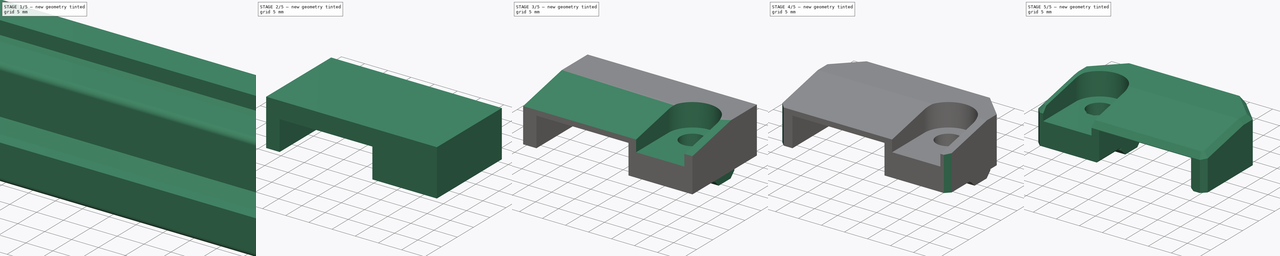
[diagram: build sequence overview — one tinted view per stage of 5, left to right]
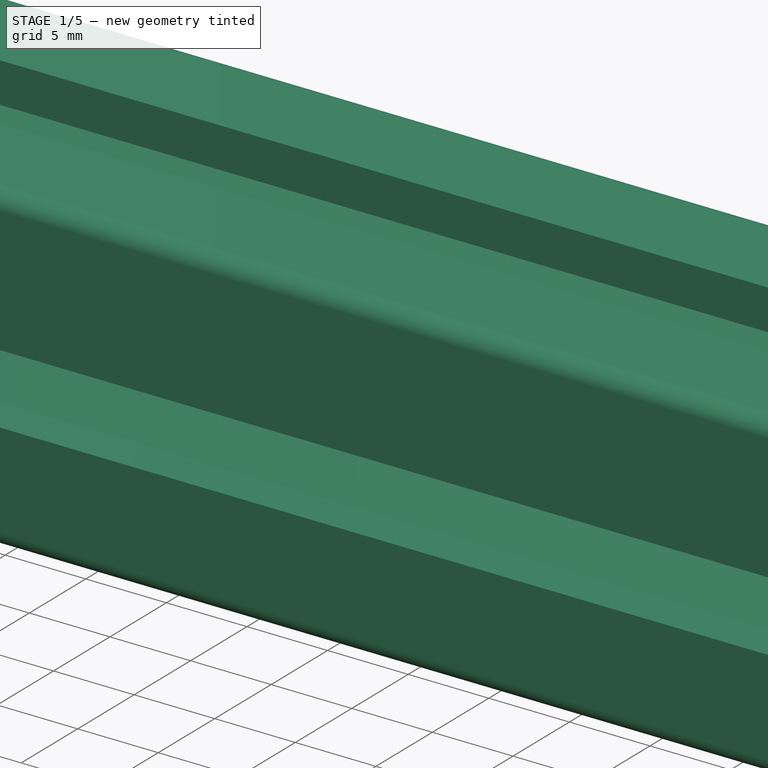
[diagram: stage 1 of 5 — iso view after this stage's code; geometry added in this stage tinted green]
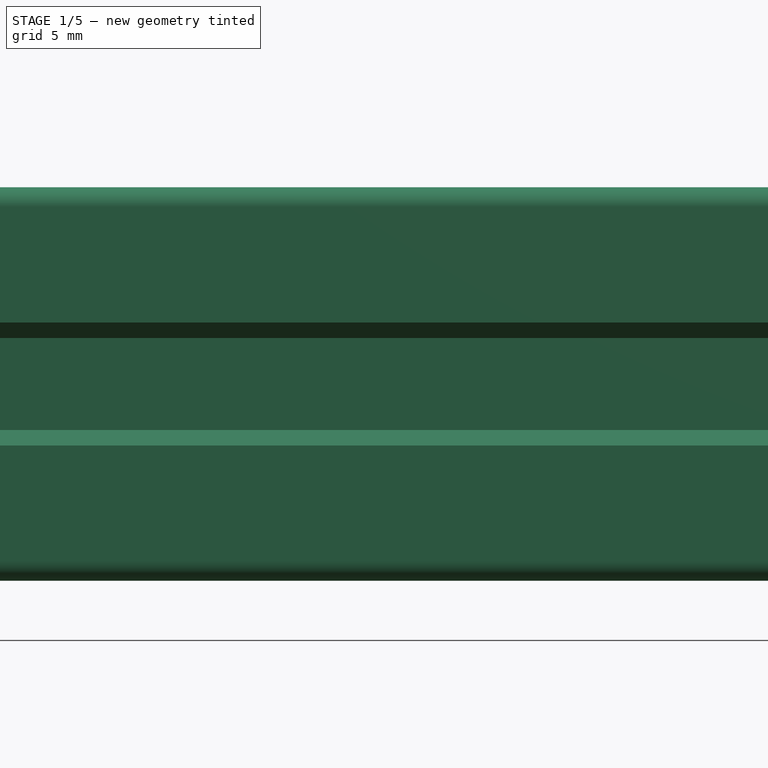
[diagram: stage 1 of 5 — front view after this stage's code; geometry added in this stage tinted green]
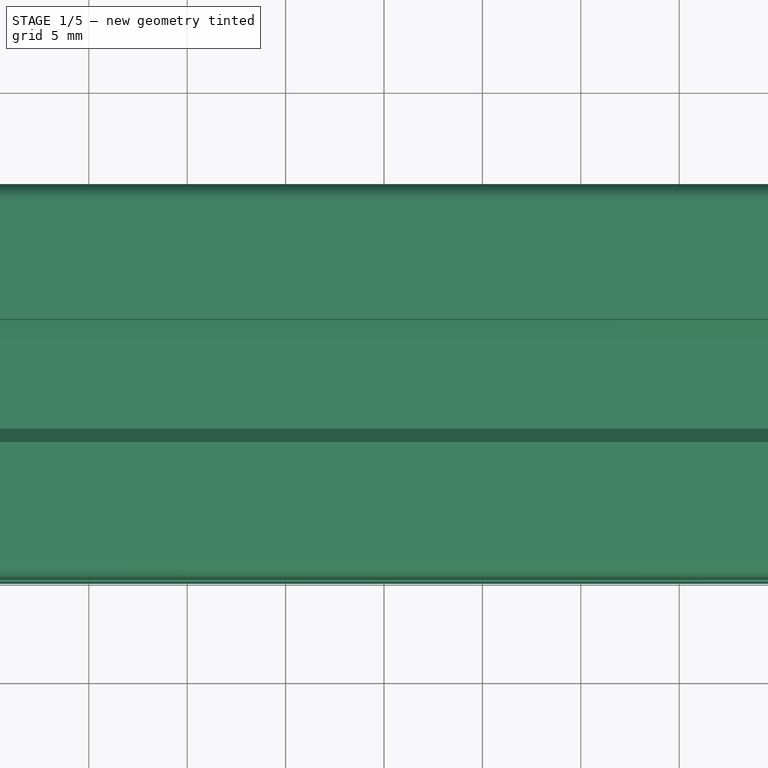
[diagram: stage 1 of 5 — top view after this stage's code; geometry added in this stage tinted green]
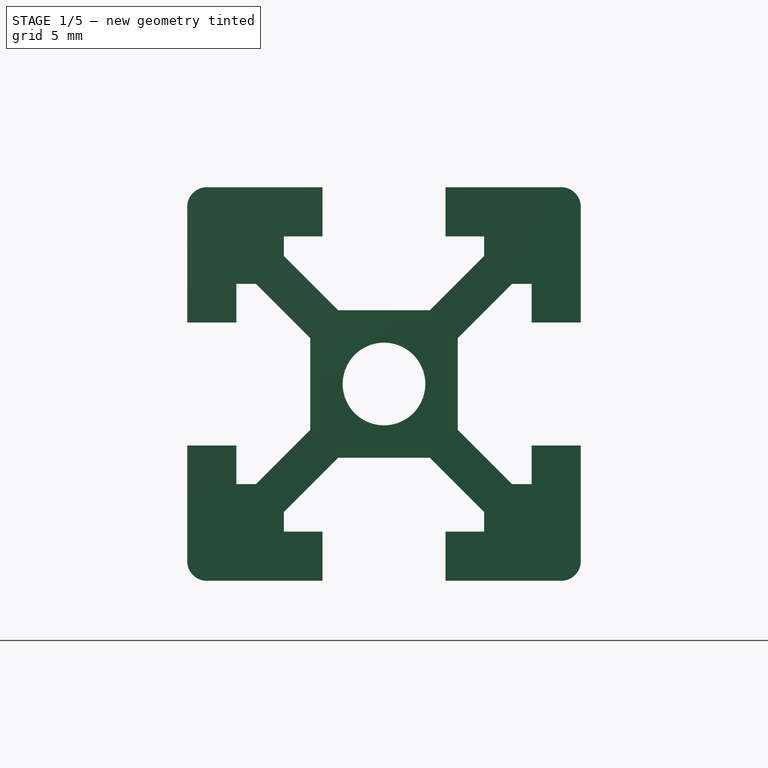
[diagram: stage 1 of 5 — right view after this stage's code; geometry added in this stage tinted green]
FCSTD DOCUMENT  (FreeCAD 0.18R16158 (Git))
Label: xendstop_3018pro
License: All rights reserved
LicenseURL: http://en.wikipedia.org/wiki/All_rights_reserved
objects: Sketcher::SketchObject×12, PartDesign::Pocket×8, PartDesign::Chamfer×5, App::Part×4, Part::Feature×4, PartDesign::Pad×3, PartDesign::ShapeBinder×3, PartDesign::Body×2, PartDesign::PolarPattern×1, PartDesign::Plane×1, PartDesign::Revolution×1, PartDesign::LinearPattern×1, PartDesign::Fillet×1, Part::Mirroring×1
note: 55 computed .brp shape members not serialized (recipe doc carries the construction recipe); baked Part::Feature solids carry a one-line shape summary decoded from their .brp

FEATURE [Sketcher::SketchObject] Sketch
  MapMode = 5
  Placement = pos=(0,0,0) rot=(0.57735,0.57735,0.57735;2.0944rad)
  Support = -> [YZ_Plane001]
  sketch-geometry (8):
    g0: LineSegment StartX=-9 StartY=10 StartZ=0 EndX=9 EndY=10 EndZ=0
    g1: LineSegment StartX=10 StartY=9 StartZ=0 EndX=10 EndY=-9 EndZ=0
    g2: LineSegment StartX=9 StartY=-10 StartZ=0 EndX=-9 EndY=-10 EndZ=0
    g3: LineSegment StartX=-10 StartY=-9 StartZ=0 EndX=-10 EndY=9 EndZ=0
    g4: ArcOfCircle CenterX=9 CenterY=9 CenterZ=0 NormalX=0 NormalY=0 NormalZ=1 AngleXU=0 Radius=1 StartAngle=5e-16 EndAngle=1.5708
    g5: ArcOfCircle CenterX=-9 CenterY=9 CenterZ=0 NormalX=0 NormalY=0 NormalZ=1 AngleXU=0 Radius=1 StartAngle=1.5708 EndAngle=3.14159
    g6: ArcOfCircle CenterX=-9 CenterY=-9 CenterZ=0 NormalX=0 NormalY=0 NormalZ=1 AngleXU=0 Radius=1 StartAngle=3.14159 EndAngle=4.71239
    g7: ArcOfCircle CenterX=9 CenterY=-9 CenterZ=0 NormalX=0 NormalY=0 NormalZ=1 AngleXU=0 Radius=1 StartAngle=4.71239 EndAngle=6.28319
  constraints (18):
    c: Horizontal(g0)
    c: Horizontal(g2)
    c: Vertical(g1)
    c: Vertical(g3)
    c: Tangent(g0,g4) = 1.5708
    c: Tangent(g1,g4) = 1.5708
    c: Tangent(g3,g5) = 1.5708
    c: Tangent(g0,g5) = 1.5708
    c: Tangent(g3,g6) = 1.5708
    c: Tangent(g2,g6) = 1.5708
    c: Tangent(g2,g7) = 1.5708
    c: Tangent(g1,g7) = 1.5708
    c: Equal(g7,g6)
    c: Equal(g0,g1)
    c: Symmetric(g4,g5,g-2)
    c: Symmetric(g4,g7,g-1)
    c: Radius(g4) = 1
    c: DistanceX(g3,g1) = 20
FEATURE [PartDesign::Pad] Pad
  Length = 200
  Length2 = 100
  Placement = pos=(0,0,0) rot=(0.57735,0.57735,0.57735;2.0944rad)
  Profile = -> Sketch
  Refine = true
  Type = 0
FEATURE [Sketcher::SketchObject] Sketch001
  ExternalGeometry = -> [Pad]
  MapMode = 5
  Placement = pos=(200,-4.4e-14,4.4e-14) rot=(0.57735,0.57735,0.57735;2.0944rad)
  Support = -> [Pad]
  sketch-geometry (14):
    g0: LineSegment StartX=-3.125 StartY=10 StartZ=0 EndX=3.125 EndY=10 EndZ=0
    g1: LineSegment StartX=3.125 StartY=10 StartZ=0 EndX=3.125 EndY=7.5 EndZ=0
    g2: LineSegment StartX=2.33579 StartY=3.75 StartZ=0 EndX=-2.33579 EndY=3.75 EndZ=0
    g3: LineSegment StartX=-3.125 StartY=7.5 StartZ=0 EndX=-3.125 EndY=10 EndZ=0
    g4: LineSegment StartX=3.125 StartY=7.5 StartZ=0 EndX=5.08579 EndY=7.5 EndZ=0
    g5: LineSegment StartX=5.08579 StartY=7.5 StartZ=0 EndX=5.08579 EndY=6.5 EndZ=0
    g6: LineSegment StartX=5.08579 StartY=6.5 StartZ=0 EndX=2.33579 EndY=3.75 EndZ=0
    g7: LineSegment StartX=-5.08579 StartY=7.5 StartZ=0 EndX=-5.08579 EndY=6.5 EndZ=0
    g8: LineSegment StartX=-5.08579 StartY=6.5 StartZ=0 EndX=-2.33579 EndY=3.75 EndZ=0
    g9: LineSegment [constr] StartX=-3.125 StartY=7.5 StartZ=0 EndX=3.125 EndY=7.5 EndZ=0
    g10: LineSegment [constr] StartX=0 StartY=0 StartZ=0 EndX=-9 EndY=9 EndZ=0
    g11: LineSegment [constr] StartX=0 StartY=0 StartZ=0 EndX=9 EndY=9 EndZ=0
    g12: LineSegment StartX=-3.125 StartY=7.5 StartZ=0 EndX=-5.08579 EndY=7.5 EndZ=0
    g13: LineSegment [constr] StartX=5.08579 StartY=6.5 StartZ=0 EndX=5.79289 EndY=5.79289 EndZ=0
  constraints (37):
    c: Coincident(g0,g1)
    c: Coincident(g3,g0)
    c: Horizontal(g0)
    c: Vertical(g1)
    c: Vertical(g3)
    c: PointOnObject(g0,g-3)
    c: Horizontal(g4)
    c: Coincident(g5,g4)
    c: Vertical(g5)
    c: Coincident(g6,g5)
    c: Coincident(g6,g2)
    c: Vertical(g7)
    c: Coincident(g8,g7)
    c: Coincident(g8,g2)
    c: Coincident(g1,g4)
    c: Coincident(g9,g1)
    c: DistanceX(g0,g0) = 6.25
    c: DistanceY(g2,g-3) = 6.25
    c: DistanceY(g1,g1) = 2.5
    c: Symmetric(g2,g2,g-2)
    c: Symmetric(g1,g3,g-2)
    c: Equal(g5,g7)
    c: Coincident(g10,g-1)
    c: Coincident(g10,g-4)
    c: Coincident(g11,g-1)
    c: Coincident(g11,g-5)
    c: Parallel(g6,g11)
    c: Coincident(g12,g3)
    c: Coincident(g12,g7)
    c: Horizontal(g12)
    c: Parallel(g8,g10)
    c: Coincident(g13,g5)
    c: PointOnObject(g13,g11)
    c: Perpendicular(g6,g13)
    c: Distance(g13) = 1
    c: DistanceY(g7,g7) = 1
    c: Coincident(g9,g3)
FEATURE [PartDesign::Pocket] Pocket
  BaseFeature = -> Pad
  Length = 5
  Length2 = 100
  Placement = pos=(0,0,0) rot=(0.57735,0.57735,0.57735;2.0944rad)
  Profile = -> Sketch001
  Refine = true
  Type = 1
FEATURE [PartDesign::PolarPattern] PolarPattern
  Angle = 360
  Axis = -> Sketch001 [N_Axis]
  BaseFeature = -> Pocket
  Occurrences = 4
  Originals = -> [Pocket]
  Placement = pos=(0,0,0) rot=(0.57735,0.57735,0.57735;2.0944rad)
  Refine = true
FEATURE [Sketcher::SketchObject] Sketch002
  MapMode = 5
  Placement = pos=(200,-4.4e-14,4.4e-14) rot=(0.57735,0.57735,0.57735;2.0944rad)
  Support = -> [PolarPattern]
  sketch-geometry (1):
    g0: Circle CenterX=0 CenterY=0 CenterZ=0 NormalX=0 NormalY=0 NormalZ=1 AngleXU=0 Radius=2.1
  constraints (2):
    c: Coincident(g0,g-1)
    c: Diameter(g0) = 4.2
FEATURE [PartDesign::Pocket] Pocket001
  BaseFeature = -> PolarPattern
  Length = 5
  Length2 = 100
  Placement = pos=(0,0,0) rot=(0.57735,0.57735,0.57735;2.0944rad)
  Profile = -> Sketch002
  Refine = true
  Type = 1
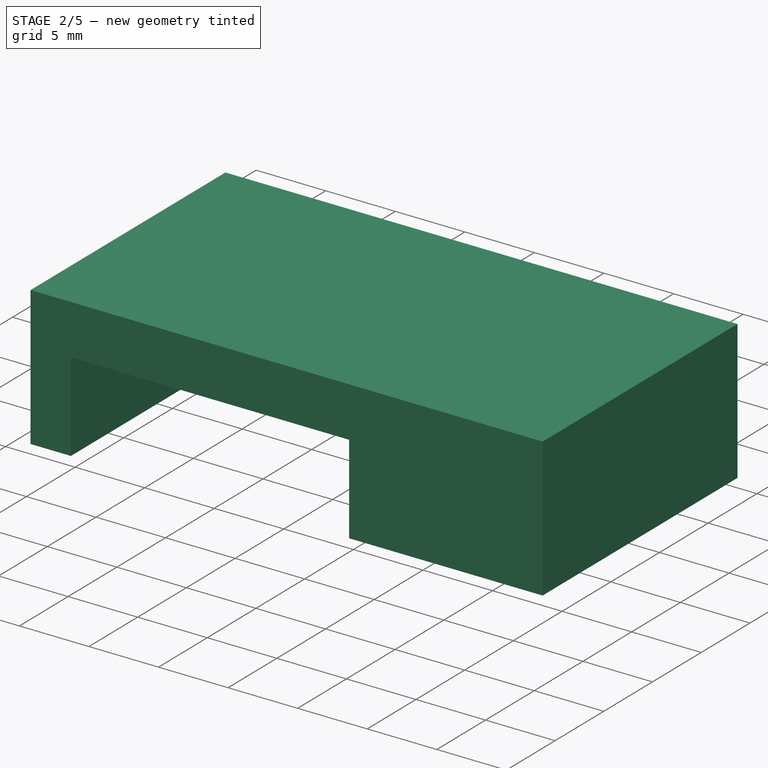
[diagram: stage 2 of 5 — iso view after this stage's code; geometry added in this stage tinted green]
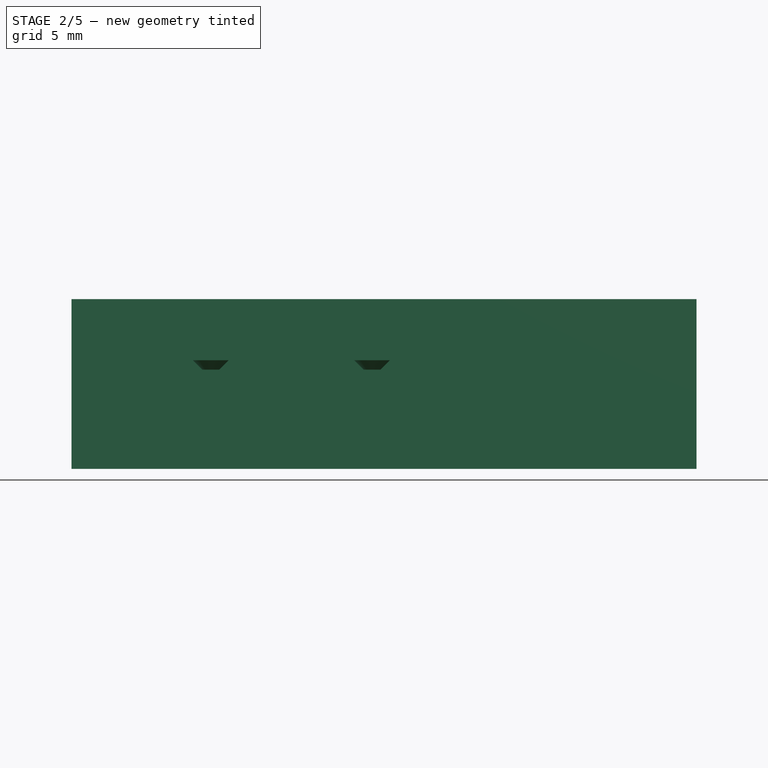
[diagram: stage 2 of 5 — front view after this stage's code; geometry added in this stage tinted green]
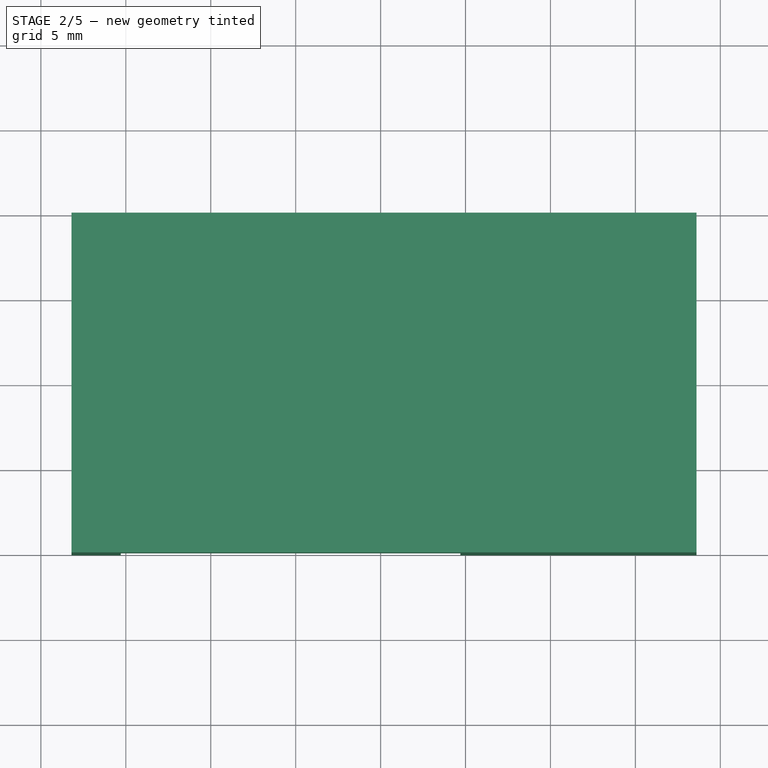
[diagram: stage 2 of 5 — top view after this stage's code; geometry added in this stage tinted green]
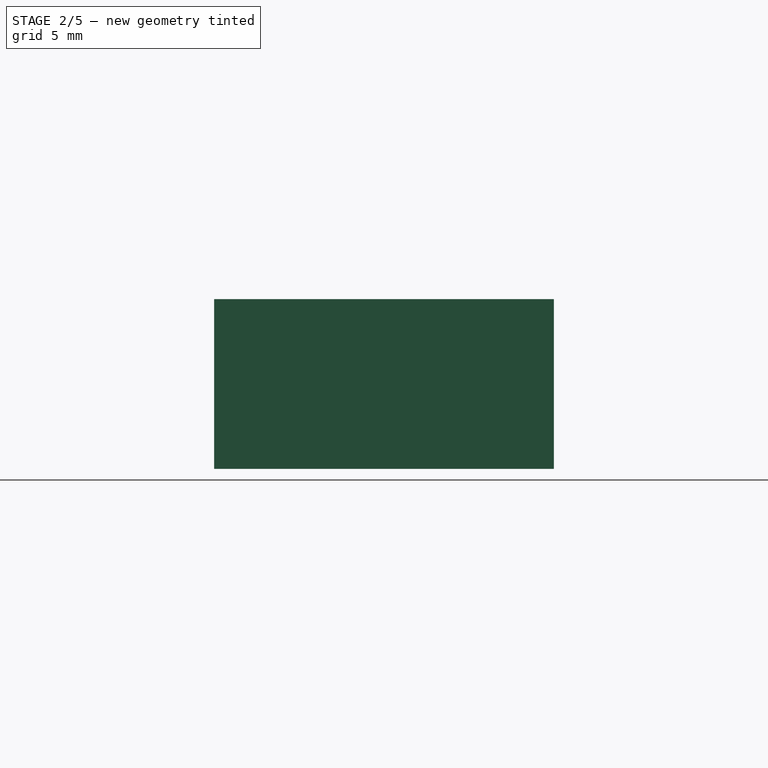
[diagram: stage 2 of 5 — right view after this stage's code; geometry added in this stage tinted green]
FEATURE [PartDesign::Body] Body  label="2040"
  Group = -> [Sketch,Pad,Sketch001,Pocket,PolarPattern,Sketch002,Pocket001]
  Origin = -> Origin001
  Tip = -> Pocket001
FEATURE [App::Part] Part  label="aluminum"
  Group = -> [Body]
  Origin = -> Origin
FEATURE [Part::Feature] Part__Feature001  label="SS_5GL2_BASE"
  shape: bbox 19.8 x 15.06 x 6.4 mm, 43 faces (baked)
FEATURE [PartDesign::ShapeBinder] ShapeBinder  label="profile_top"
  Support = -> [Pocket001]
  TraceSupport = true
FEATURE [PartDesign::ShapeBinder] ShapeBinder001  label="switch_side"
  Placement = pos=(50,-3,13.2) rot=(0,0,1;3.14159rad)
  Support = -> [Part__Feature001]
  TraceSupport = true
FEATURE [Sketcher::SketchObject] Sketch003
  ExternalGeometry = -> [ShapeBinder,ShapeBinder001]
  MapMode = 5
  Placement = pos=(-2.8e-15,4.4e-15,10) rot=(0,0,1;0rad)
  Support = -> [ShapeBinder]
  sketch-geometry (5):
    g0: LineSegment StartX=41.8 StartY=10 StartZ=0 EndX=78.6 EndY=10 EndZ=0
    g1: LineSegment StartX=78.6 StartY=10 StartZ=0 EndX=78.6 EndY=-10 EndZ=0
    g2: LineSegment StartX=78.6 StartY=-10 StartZ=0 EndX=41.8 EndY=-10 EndZ=0
    g3: LineSegment StartX=41.8 StartY=-10 StartZ=0 EndX=41.8 EndY=10 EndZ=0
    g4: Circle [constr] CenterX=71.6 CenterY=0 CenterZ=0 NormalX=0 NormalY=0 NormalZ=1 AngleXU=0 Radius=7
  constraints (15):
    c: Coincident(g0,g1)
    c: Coincident(g1,g2)
    c: Coincident(g2,g3)
    c: Coincident(g3,g0)
    c: Horizontal(g0)
    c: Horizontal(g2)
    c: Vertical(g1)
    c: Vertical(g3)
    c: PointOnObject(g4,g-1)
    c: Diameter(g4) = 14
    c: Tangent(g4,g-5)
    c: Tangent(g4,g1)
    c: DistanceX(g0,g-6) = 3
    c: DistanceY(g-1,g0) = 10
    c: DistanceY(g2,g-1) = 10
FEATURE [PartDesign::Pad] Pad001
  Length = 10
  Length2 = 100
  Profile = -> Sketch003
  Refine = true
  Type = 0
FEATURE [Sketcher::SketchObject] Sketch004
  ExternalGeometry = -> [ShapeBinder001,Pad001]
  MapMode = 5
  Placement = pos=(-1.06e-14,8e-15,10) rot=(1,0,0;3.14159rad)
  Support = -> [Pad001]
  sketch-geometry (4):
    g0: LineSegment StartX=44.7 StartY=10 StartZ=0 EndX=64.7 EndY=10 EndZ=0
    g1: LineSegment StartX=64.7 StartY=10 StartZ=0 EndX=64.7 EndY=-6.4 EndZ=0
    g2: LineSegment StartX=64.7 StartY=-6.4 StartZ=0 EndX=44.7 EndY=-6.4 EndZ=0
    g3: LineSegment StartX=44.7 StartY=-6.4 StartZ=0 EndX=44.7 EndY=10 EndZ=0
  constraints (12):
    c: Coincident(g0,g1)
    c: Coincident(g1,g2)
    c: Coincident(g2,g3)
    c: Coincident(g3,g0)
    c: Horizontal(g0)
    c: Horizontal(g2)
    c: Vertical(g1)
    c: Vertical(g3)
    c: PointOnObject(g0,g-7)
    c: DistanceX(g0,g-4) = 0.1
    c: DistanceX(g-3,g0) = 0.1
    c: DistanceY(g1,g-6) = 6.5
FEATURE [PartDesign::Pocket] Pocket002
  BaseFeature = -> Pad001
  Length = 6.4
  Length2 = 100
  Profile = -> Sketch004
  Refine = true
  Type = 0
FEATURE [PartDesign::Plane] DatumPlane
  AttachmentOffset = pos=(0,0,9.4) rot=(0,0,1;0rad)
  Length = 98.9112
  MapMode = 5
  Placement = pos=(0,-3,1.7e-15) rot=(1,0,0;1.5708rad)
  ResizeMode = 0
  Support = -> [Pocket002]
  Width = 40.3112
FEATURE [Sketcher::SketchObject] Sketch005
  ExternalGeometry = -> [Pocket002,ShapeBinder001]
  MapMode = 5
  Placement = pos=(0,-3,1.7e-15) rot=(1,0,0;1.5708rad)
  Support = -> [DatumPlane]
  sketch-geometry (5):
    g0: LineSegment StartX=50 StartY=15.85 StartZ=0 EndX=50.5 EndY=15.85 EndZ=0
    g1: LineSegment StartX=50.5 StartY=15.85 StartZ=0 EndX=51.05 EndY=16.4 EndZ=0
    g2: LineSegment StartX=51.05 StartY=16.4 StartZ=0 EndX=50 EndY=16.4 EndZ=0
    g3: LineSegment StartX=50 StartY=16.4 StartZ=0 EndX=50 EndY=15.85 EndZ=0
    g4: LineSegment [constr] StartX=50 StartY=15.85 StartZ=0 EndX=50 EndY=10 EndZ=0
  constraints (14):
    c: Horizontal(g0)
    c: Coincident(g1,g0)
    c: PointOnObject(g1,g-3)
    c: Coincident(g2,g1)
    c: Vertical(g3)
    c: Angle(g2,g1) = 0.785398
    c: Coincident(g4,g3)
    c: Symmetric(g-4,g-4,g4)
    c: Vertical(g4)
    c: Coincident(g2,g3)
    c: DistanceX(g2,g2) = 1.05
    c: DistanceX(g0,g0) = 0.5
    c: PointOnObject(g2,g-3)
    c: Coincident(g3,g0)
FEATURE [PartDesign::Revolution] Revolution
  Angle = 360
  Axis = (0,-4.2e-15,-5.85)
  Base = (50,-3,15.85)
  BaseFeature = -> Pocket002
  Profile = -> Sketch005
  ReferenceAxis = -> Sketch005 [Axis0]
  Refine = true
FEATURE [PartDesign::LinearPattern] LinearPattern
  BaseFeature = -> Revolution
  Direction = -> Sketch005 [H_Axis]
  Length = 9.5
  Occurrences = 2
  Originals = -> [Revolution]
  Refine = true
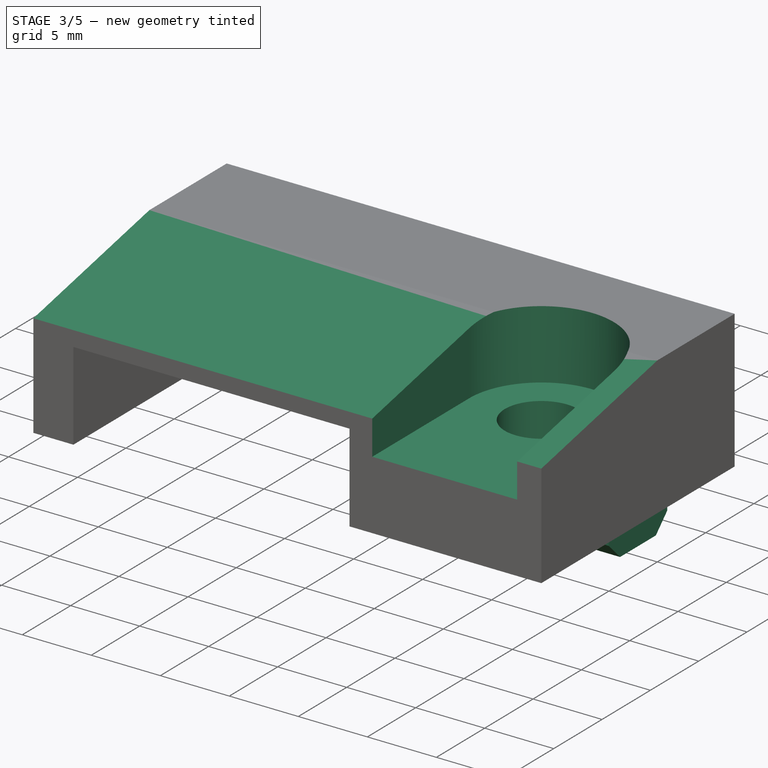
[diagram: stage 3 of 5 — iso view after this stage's code; geometry added in this stage tinted green]
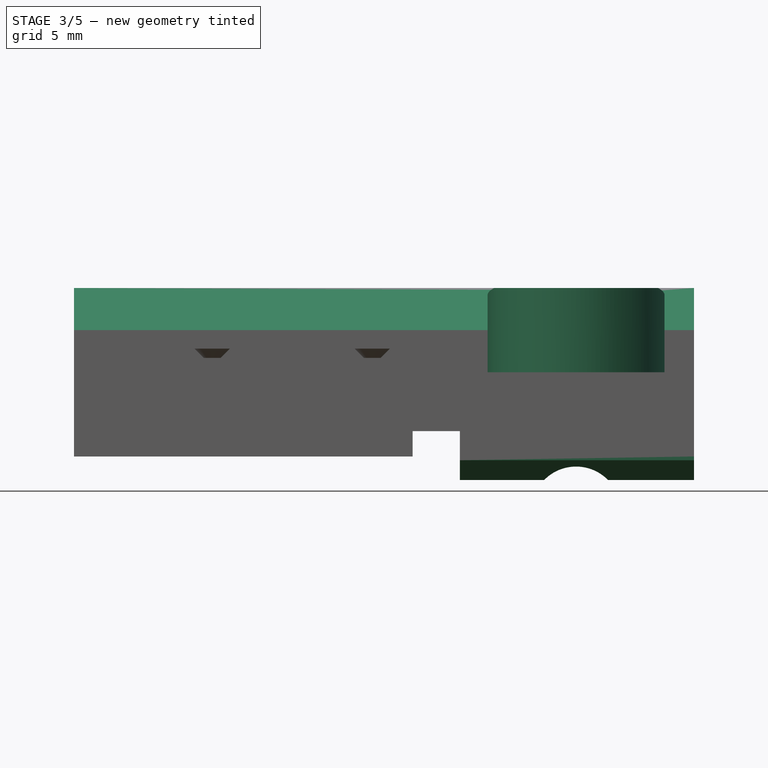
[diagram: stage 3 of 5 — front view after this stage's code; geometry added in this stage tinted green]
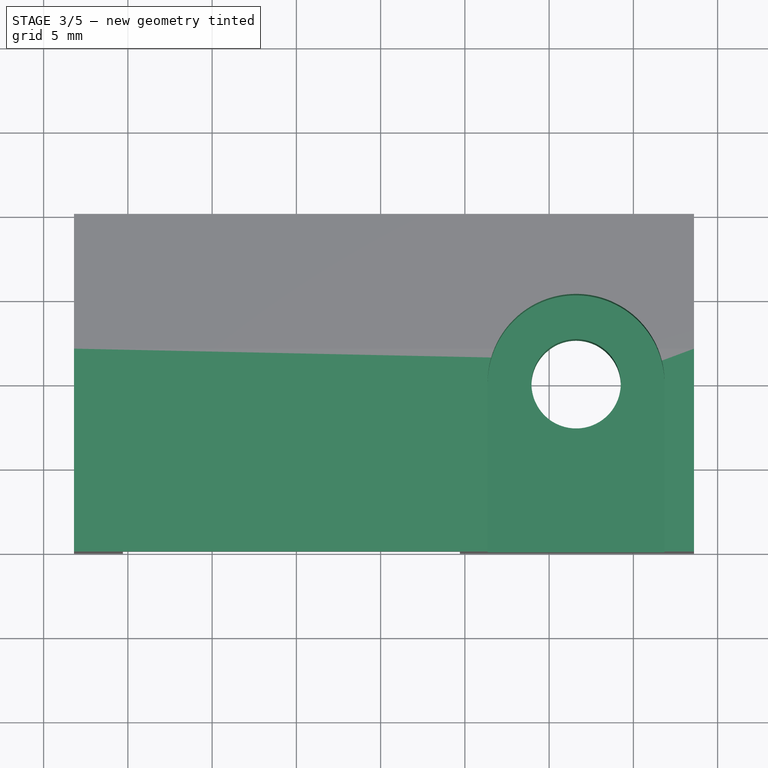
[diagram: stage 3 of 5 — top view after this stage's code; geometry added in this stage tinted green]
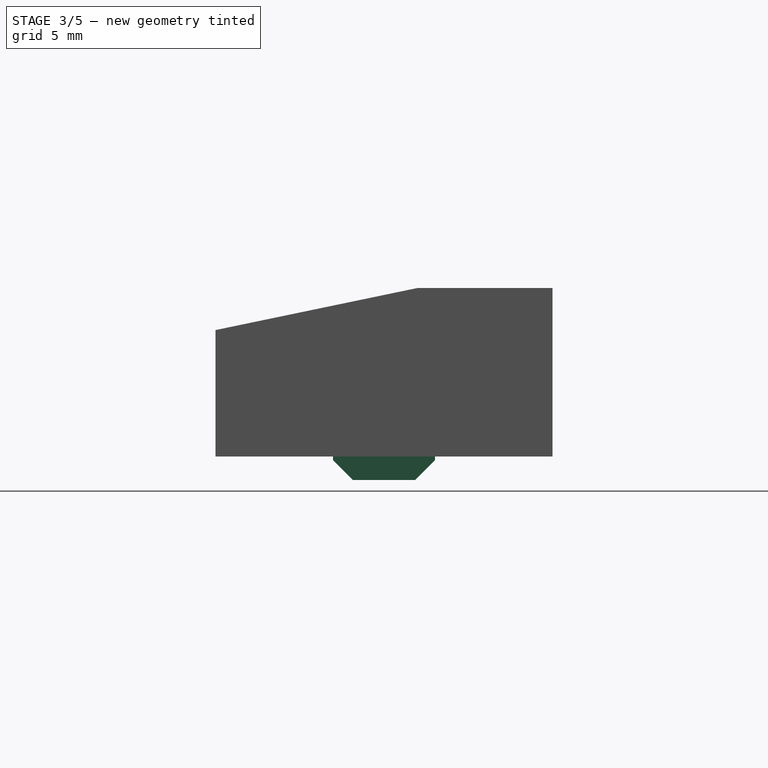
[diagram: stage 3 of 5 — right view after this stage's code; geometry added in this stage tinted green]
FEATURE [PartDesign::ShapeBinder] ShapeBinder002
  Placement = pos=(0,0,0) rot=(0.57735,0.57735,0.57735;2.0944rad)
  Support = -> [Pocket001]
  TraceSupport = true
FEATURE [Sketcher::SketchObject] Sketch006
  ExternalGeometry = -> [ShapeBinder002,LinearPattern]
  MapMode = 5
  Placement = pos=(78.6,0,8.25e-14) rot=(0.57735,0.57735,0.57735;2.0944rad)
  Support = -> [LinearPattern]
  sketch-geometry (8):
    g0: LineSegment StartX=-3.025 StartY=10 StartZ=0 EndX=3.025 EndY=10 EndZ=0
    g1: LineSegment StartX=3.025 StartY=10 StartZ=0 EndX=3.025 EndY=9.775 EndZ=0
    g2: LineSegment StartX=3.025 StartY=9.775 StartZ=0 EndX=1.85 EndY=8.6 EndZ=0
    g3: LineSegment StartX=1.85 StartY=8.6 StartZ=0 EndX=-1.85 EndY=8.6 EndZ=0
    g4: LineSegment StartX=-1.85 StartY=8.6 StartZ=0 EndX=-3.025 EndY=9.775 EndZ=0
    g5: LineSegment StartX=-3.025 StartY=9.775 StartZ=0 EndX=-3.025 EndY=10 EndZ=0
    g6: LineSegment [constr] StartX=9.6e-15 StartY=10 StartZ=0 EndX=9.6e-15 EndY=8.6 EndZ=0
    g7: LineSegment [constr] StartX=3.025 StartY=9.775 StartZ=0 EndX=-3.025 EndY=9.775 EndZ=0
  constraints (22):
    c: PointOnObject(g0,g-5)
    c: PointOnObject(g0,g-5)
    c: Coincident(g1,g0)
    c: Coincident(g2,g1)
    c: Coincident(g3,g2)
    c: Coincident(g4,g3)
    c: Coincident(g5,g4)
    c: Vertical(g5)
    c: Vertical(g6)
    c: Coincident(g7,g1)
    c: Coincident(g7,g4)
    c: Vertical(g1)
    c: Horizontal(g7)
    c: Symmetric(g0,g5,g6)
    c: Symmetric(g2,g3,g6)
    c: Coincident(g5,g0)
    c: DistanceX(g0,g-3) = 0.1
    c: DistanceX(g-4,g0) = 0.1
    c: Horizontal(g3)
    c: Angle(g7,g2) = 0.785398
    c: DistanceY(g1,g1) = 0.225
    c: DistanceY(g2,g0) = 1.4
FEATURE [PartDesign::Pad] Pad002
  BaseFeature = -> LinearPattern
  Length = 10
  Length2 = 100
  Profile = -> Sketch006
  Refine = true
  Type = 3
  UpToFace = -> LinearPattern [Face9]
FEATURE [Sketcher::SketchObject] Sketch007
  ExternalGeometry = -> [ShapeBinder,Pad002]
  MapMode = 5
  Placement = pos=(-2.12e-14,1.6e-14,20) rot=(0,0,1;0rad)
  Support = -> [Pad002]
  sketch-geometry (2):
    g0: Circle [constr] CenterX=71.6 CenterY=0 CenterZ=0 NormalX=0 NormalY=0 NormalZ=1 AngleXU=0 Radius=7
    g1: Circle CenterX=71.6 CenterY=0 CenterZ=0 NormalX=0 NormalY=0 NormalZ=1 AngleXU=0 Radius=2.65
  constraints (5):
    c: PointOnObject(g0,g-1)
    c: Diameter(g0) = 14
    c: Tangent(g0,g-5)
    c: Coincident(g1,g0)
    c: Diameter(g1) = 5.3
FEATURE [PartDesign::Pocket] Pocket003
  BaseFeature = -> Pad002
  Length = 5
  Length2 = 100
  Profile = -> Sketch007
  Refine = true
  Type = 1
FEATURE [Sketcher::SketchObject] Sketch008
  ExternalGeometry = -> [Pocket003]
  MapMode = 5
  Placement = pos=(-2.12e-14,1.6e-14,20) rot=(0,0,1;0rad)
  Support = -> [Pocket003]
  sketch-geometry (5):
    g0: ArcOfCircle CenterX=71.6 CenterY=0 CenterZ=0 NormalX=0 NormalY=0 NormalZ=1 AngleXU=0 Radius=5.25 StartAngle=0 EndAngle=3.14159
    g1: LineSegment [constr] StartX=66.35 StartY=0 StartZ=0 EndX=76.85 EndY=0 EndZ=0
    g2: LineSegment StartX=76.85 StartY=0 StartZ=0 EndX=76.85 EndY=-10 EndZ=0
    g3: LineSegment StartX=76.85 StartY=-10 StartZ=0 EndX=66.35 EndY=-10 EndZ=0
    g4: LineSegment StartX=66.35 StartY=-10 StartZ=0 EndX=66.35 EndY=0 EndZ=0
  constraints (14):
    c: Coincident(g0,g-3)
    c: Diameter(g0) = 10.5
    c: Coincident(g2,g3)
    c: Coincident(g3,g4)
    c: Horizontal(g1)
    c: Horizontal(g3)
    c: Vertical(g2)
    c: Vertical(g4)
    c: PointOnObject(g2,g-1)
    c: PointOnObject(g3,g-4)
    c: Coincident(g0,g1)
    c: Coincident(g0,g1)
    c: Coincident(g4,g0)
    c: Coincident(g0,g2)
FEATURE [PartDesign::Pocket] Pocket004
  BaseFeature = -> Pocket003
  Length = 0
  Length2 = 100
  Offset = -5
  Profile = -> Sketch008
  Refine = true
  Type = 3
  UpToFace = -> Pocket003 [Face7]
FEATURE [Sketcher::SketchObject] Sketch009
  ExternalGeometry = -> [Pocket004]
  MapMode = 5
  Placement = pos=(78.6,0,1.084e-13) rot=(0.57735,0.57735,0.57735;2.0944rad)
  Support = -> [Pocket004]
  sketch-geometry (3):
    g0: LineSegment StartX=-10 StartY=17.5 StartZ=0 EndX=2 EndY=20 EndZ=0
    g1: LineSegment StartX=2 StartY=20 StartZ=0 EndX=-10 EndY=20 EndZ=0
    g2: LineSegment StartX=-10 StartY=20 StartZ=0 EndX=-10 EndY=17.5 EndZ=0
  constraints (8):
    c: PointOnObject(g0,g-4)
    c: PointOnObject(g0,g-3)
    c: Coincident(g1,g0)
    c: Coincident(g1,g-4)
    c: Coincident(g2,g1)
    c: Coincident(g2,g0)
    c: DistanceX(g1,g1) = 12
    c: DistanceY(g2,g2) = 2.5
FEATURE [PartDesign::Pocket] Pocket005
  BaseFeature = -> Pocket004
  Length = 5
  Length2 = 100
  Profile = -> Sketch009
  Refine = true
  Type = 1
FEATURE [Sketcher::SketchObject] Sketch010
  ExternalGeometry = -> [Pocket005]
  MapMode = 5
  Placement = pos=(-1.06e-14,8e-15,10) rot=(1,0,0;3.14159rad)
  Support = -> [Pocket005]
  sketch-geometry (4):
    g0: LineSegment StartX=64.7 StartY=-6.4 StartZ=0 EndX=61.9 EndY=-6.4 EndZ=0
    g1: LineSegment StartX=61.9 StartY=-6.4 StartZ=0 EndX=61.9 EndY=-10 EndZ=0
    g2: LineSegment StartX=61.9 StartY=-10 StartZ=0 EndX=64.7 EndY=-10 EndZ=0
    g3: LineSegment StartX=64.7 StartY=-10 StartZ=0 EndX=64.7 EndY=-6.4 EndZ=0
  constraints (11):
    c: Coincident(g0,g1)
    c: Coincident(g1,g2)
    c: Coincident(g2,g3)
    c: Coincident(g3,g0)
    c: Horizontal(g0)
    c: Horizontal(g2)
    c: Vertical(g1)
    c: Vertical(g3)
    c: Coincident(g0,g-3)
    c: PointOnObject(g1,g-4)
    c: DistanceX(g0,g0) = 2.8
FEATURE [PartDesign::Pocket] Pocket006
  BaseFeature = -> Pocket005
  Length = 1.5
  Length2 = 100
  Profile = -> Sketch010
  Refine = true
  Type = 0
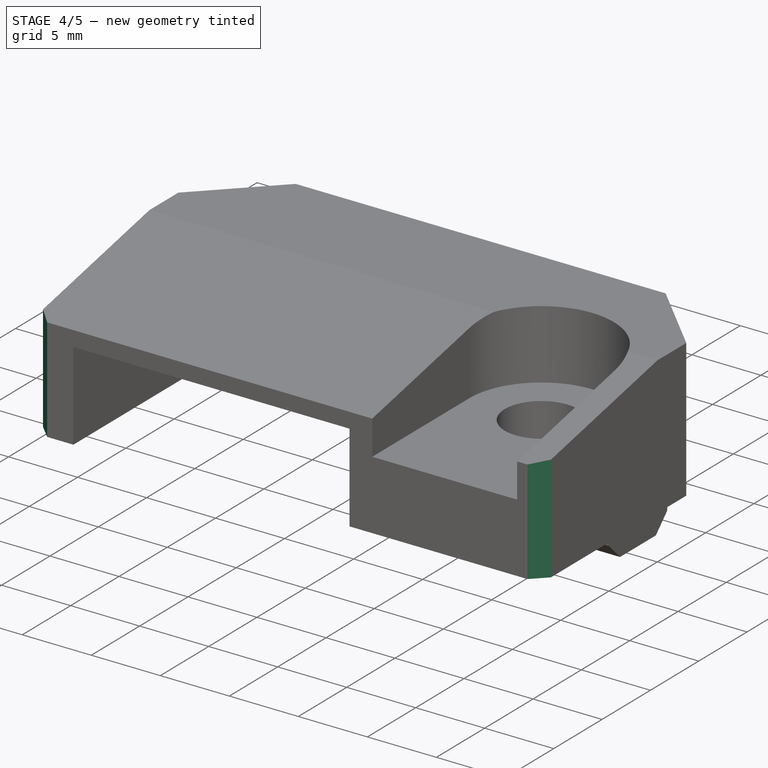
[diagram: stage 4 of 5 — iso view after this stage's code; geometry added in this stage tinted green]
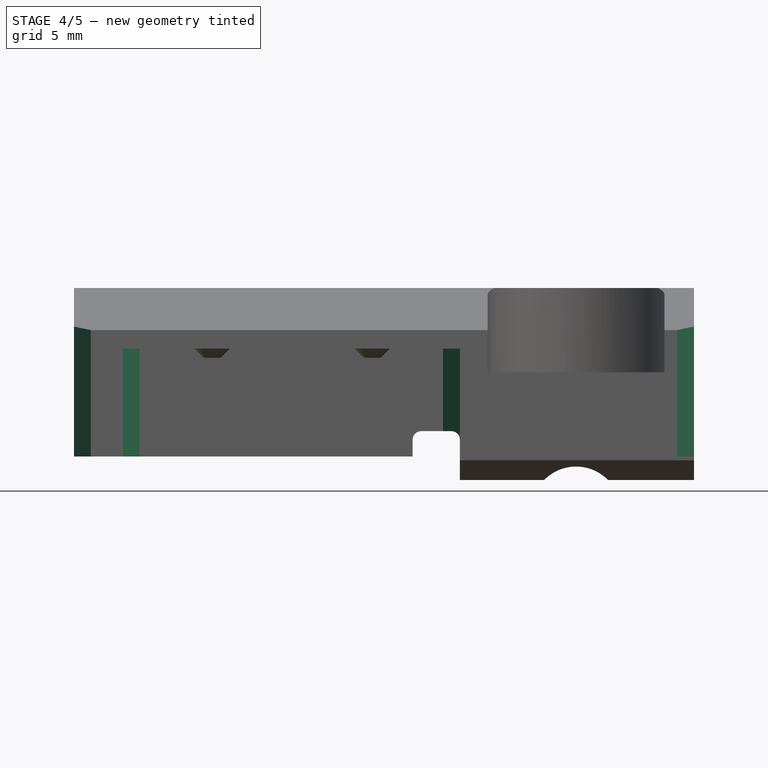
[diagram: stage 4 of 5 — front view after this stage's code; geometry added in this stage tinted green]
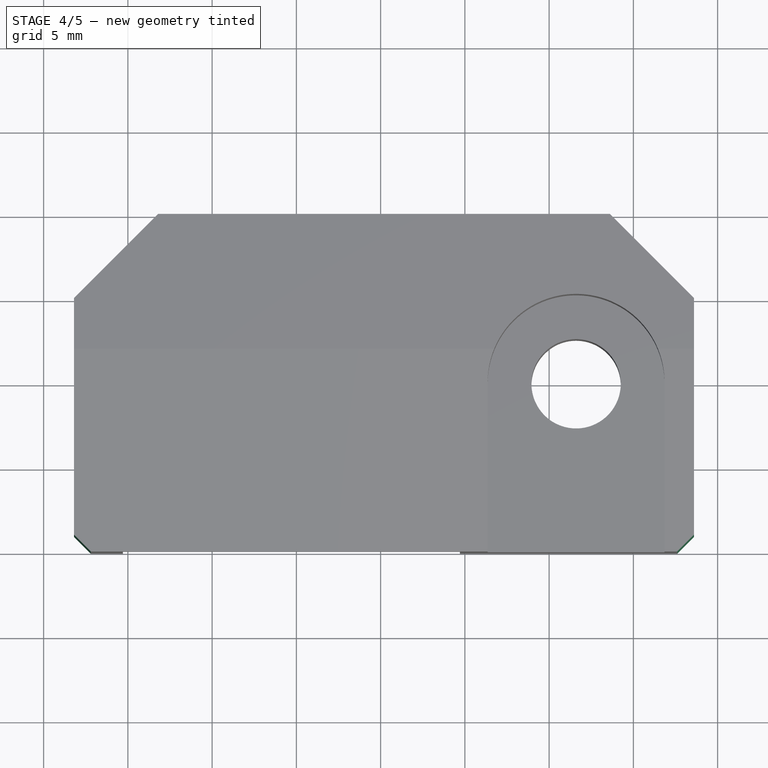
[diagram: stage 4 of 5 — top view after this stage's code; geometry added in this stage tinted green]
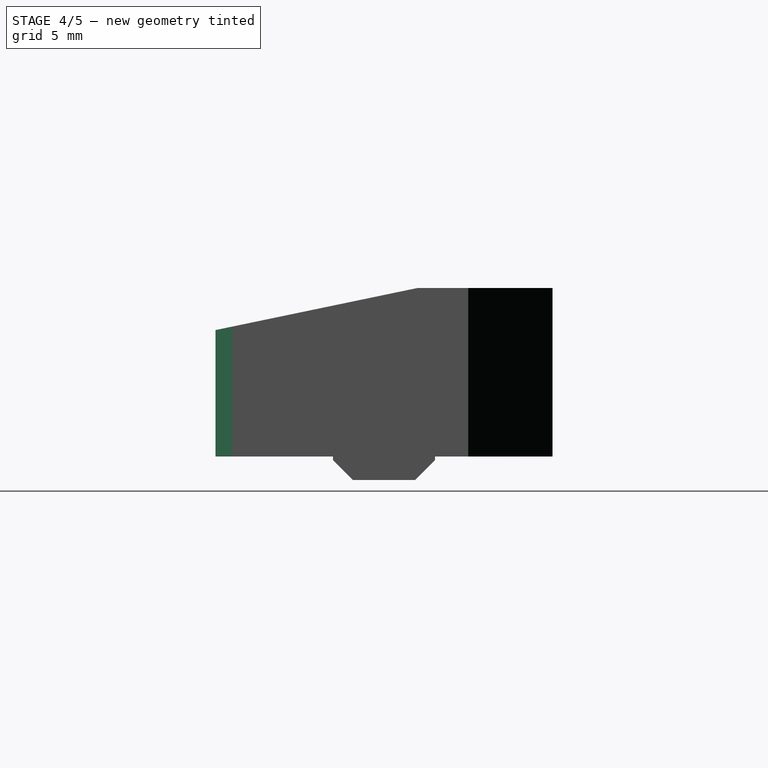
[diagram: stage 4 of 5 — right view after this stage's code; geometry added in this stage tinted green]
FEATURE [PartDesign::Fillet] Fillet
  Base = -> Pocket006 [Edge15,Edge17]
  BaseFeature = -> Pocket006
  Radius = 0.5
FEATURE [PartDesign::Chamfer] Chamfer
  Base = -> Fillet [Edge49,Edge24]
  BaseFeature = -> Fillet
  Size = 1
FEATURE [PartDesign::Chamfer] Chamfer001
  Base = -> Chamfer [Edge20,Edge9]
  BaseFeature = -> Chamfer
  Size = 5
FEATURE [PartDesign::Chamfer] Chamfer002
  Base = -> Chamfer001 [Edge43,Edge37]
  BaseFeature = -> Chamfer001
  Size = 1
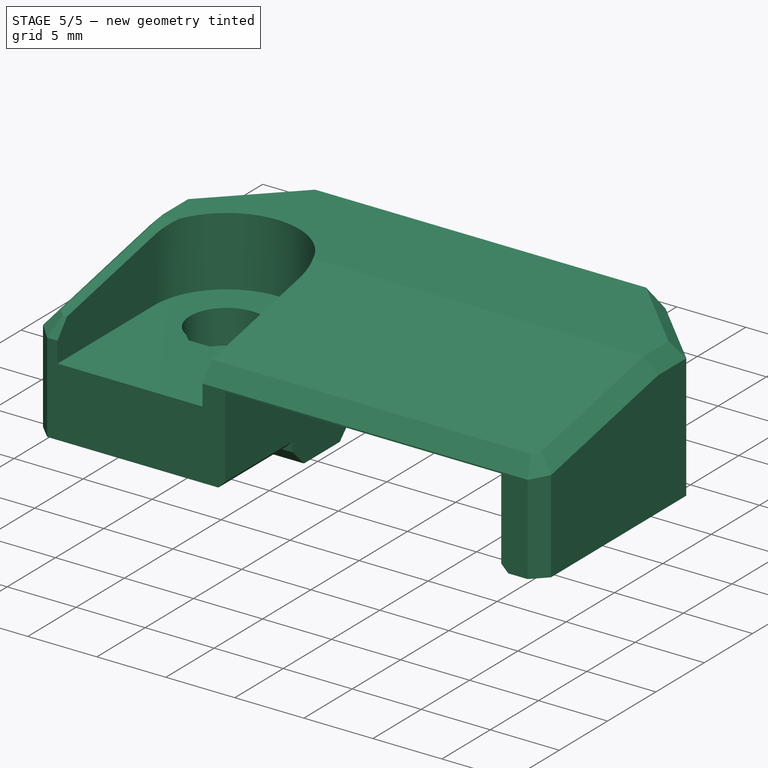
[diagram: stage 5 of 5 — iso view after this stage's code; geometry added in this stage tinted green]
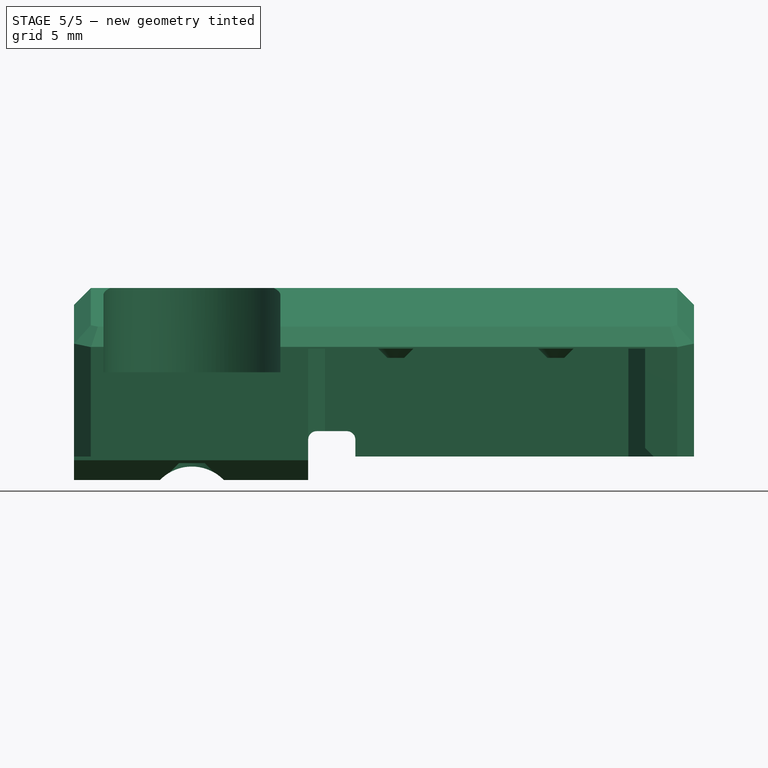
[diagram: stage 5 of 5 — front view after this stage's code; geometry added in this stage tinted green]
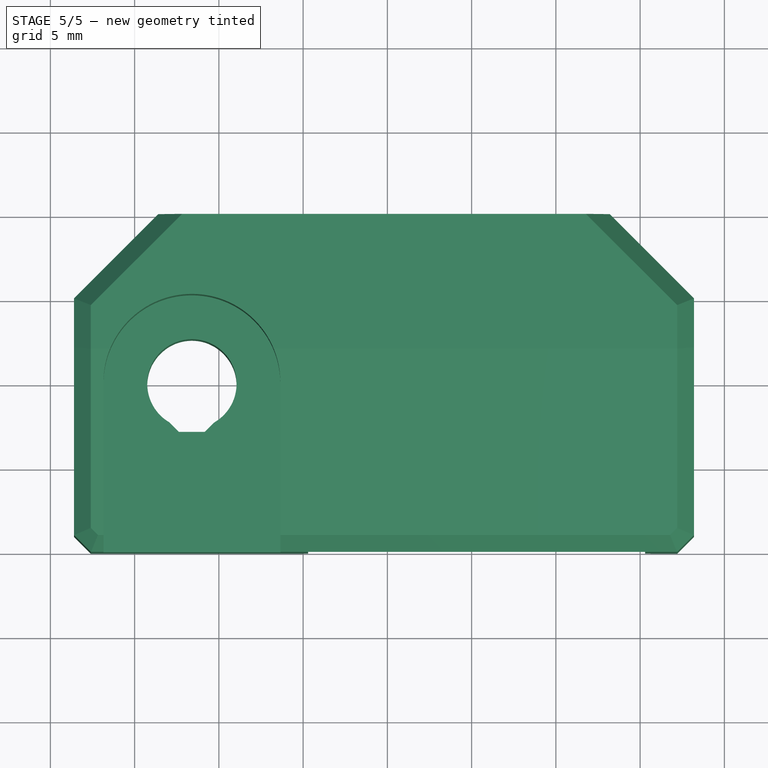
[diagram: stage 5 of 5 — top view after this stage's code; geometry added in this stage tinted green]
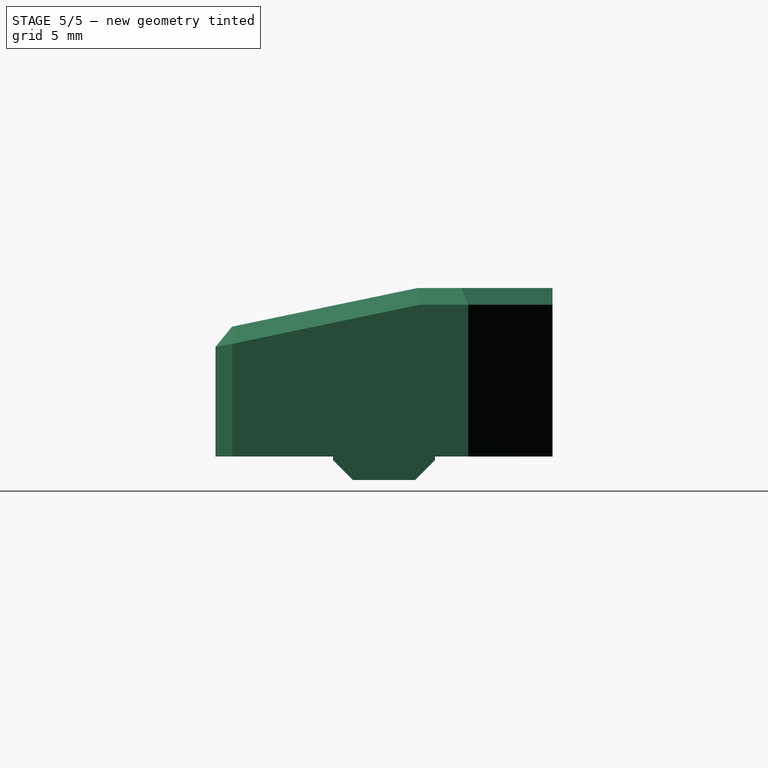
[diagram: stage 5 of 5 — right view after this stage's code; geometry added in this stage tinted green]
FEATURE [PartDesign::Chamfer] Chamfer003
  Base = -> Chamfer002 [Edge1,Edge51]
  BaseFeature = -> Chamfer002
  Size = 0.5
FEATURE [PartDesign::Chamfer] Chamfer004
  Base = -> Chamfer003 [Edge87,Edge86,Edge69,Edge35,Edge32,Edge33,Edge27,Edge22,Edge15,Edge57]
  BaseFeature = -> Chamfer003
  Size = 1
FEATURE [Sketcher::SketchObject] Sketch011
  ExternalGeometry = -> [Chamfer004]
  MapMode = 5
  Placement = pos=(-1.59e-14,1.2e-14,15) rot=(0,0,1;0rad)
  Support = -> [Chamfer004]
  sketch-geometry (6):
    g0: LineSegment StartX=70.275 StartY=-2.29497 StartZ=0 EndX=70.831 EndY=-2.851 EndZ=0
    g1: LineSegment StartX=70.831 StartY=-2.851 StartZ=0 EndX=72.369 EndY=-2.851 EndZ=0
    g2: LineSegment StartX=72.369 StartY=-2.851 StartZ=0 EndX=72.925 EndY=-2.29497 EndZ=0
    g3: LineSegment StartX=72.925 StartY=-2.29497 StartZ=0 EndX=70.275 EndY=-2.29497 EndZ=0
    g4: LineSegment [constr] StartX=71.6 StartY=0 StartZ=0 EndX=71.6 EndY=-2.851 EndZ=0
    g5: LineSegment [constr] StartX=70.63 StartY=-2.65 StartZ=0 EndX=72.57 EndY=-2.65 EndZ=0
  constraints (18):
    c: PointOnObject(g0,g-3)
    c: Coincident(g1,g0)
    c: Horizontal(g1)
    c: Coincident(g2,g1)
    c: PointOnObject(g2,g-3)
    c: Coincident(g3,g2)
    c: Coincident(g3,g0)
    c: Horizontal(g3)
    c: Coincident(g4,g-3)
    c: Vertical(g4)
    c: Symmetric(g1,g0,g4)
    c: PointOnObject(g5,g0)
    c: PointOnObject(g5,g2)
    c: Horizontal(g5)
    c: Tangent(g-3,g5)
    c: DistanceY(g1,g5) = 0.201
    c: DistanceX(g3,g3) = 2.65
    c: Angle(g3,g2) = 0.785398
FEATURE [PartDesign::Pocket] Pocket007
  BaseFeature = -> Chamfer004
  Length = 5
  Length2 = 100
  Profile = -> Sketch011
  Refine = true
  Type = 1
FEATURE [PartDesign::Body] Body001  label="x_negative"
  Group = -> [ShapeBinder,ShapeBinder001,Sketch003,Pad001,Sketch004,Pocket002,DatumPlane,Sketch005,Revolution,LinearPattern,ShapeBinder002,Sketch006,Pad002,Sketch007,Pocket003,Sketch008,Pocket004,Sketch009,Pocket005,Sketch010,Pocket006,Fillet,Chamfer,Chamfer001,Chamfer002,Chamfer003,Chamfer004,Sketch011,Pocket007]
  Origin = -> Origin005
  Tip = -> Pocket007
FEATURE [Part::Mirroring] Part__Mirroring  label="x_positive"
  Base = (0,0,0)
  Normal = (1,0,0)
  Placement = pos=(200,0,0) rot=(0,0,1;0rad)
  Source = -> Body001
FEATURE [App::Part] Part001  label="mounts"
  Group = -> [Body001,Part__Mirroring]
  Origin = -> Origin004
FEATURE [Part::Feature] Part__Feature002  label="SS_5GL2_ACTUATOR001"
  Placement = pos=(-11.5,7.7,0) rot=(0,0,1;0rad)
  shape: bbox 17.42 x 11.6 x 5.4 mm, 30 faces (baked)
FEATURE [Part::Feature] Part__Feature003  label="SS_5GL2_BASE001"
  shape: bbox 19.8 x 15.06 x 6.4 mm, 43 faces (baked)
FEATURE [App::Part] SS_5GL2001  label="SS_5GL003"
  Group = -> [Part__Feature002,Part__Feature003]
  Origin = -> Origin006
  Placement = pos=(-100,0,0) rot=(0,1,0;3.14159rad)
FEATURE [Part::Feature] Part__Feature  label="SS_5GL2_ACTUATOR"
  Placement = pos=(-11.5,7.7,0) rot=(0,0,1;0rad)
  shape: bbox 17.42 x 11.6 x 5.4 mm, 30 faces (baked)
FEATURE [App::Part] SS_5GL2
  Group = -> [Part__Feature,Part__Feature001,SS_5GL2001]
  Origin = -> Origin003
  Placement = pos=(50,-3,13.2) rot=(0,0,1;3.14159rad)
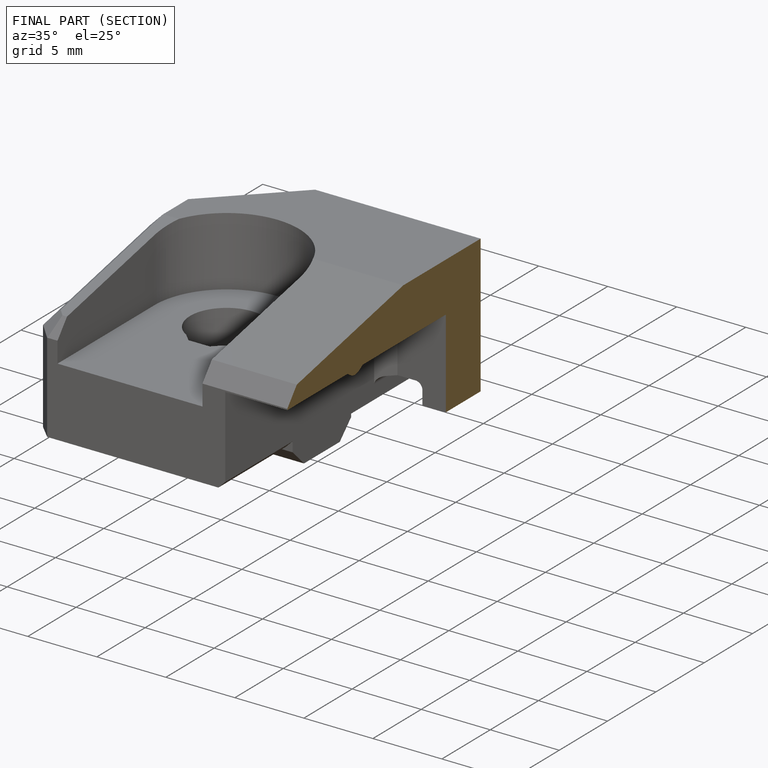
[diagram: finished part — half-section view (interior)]
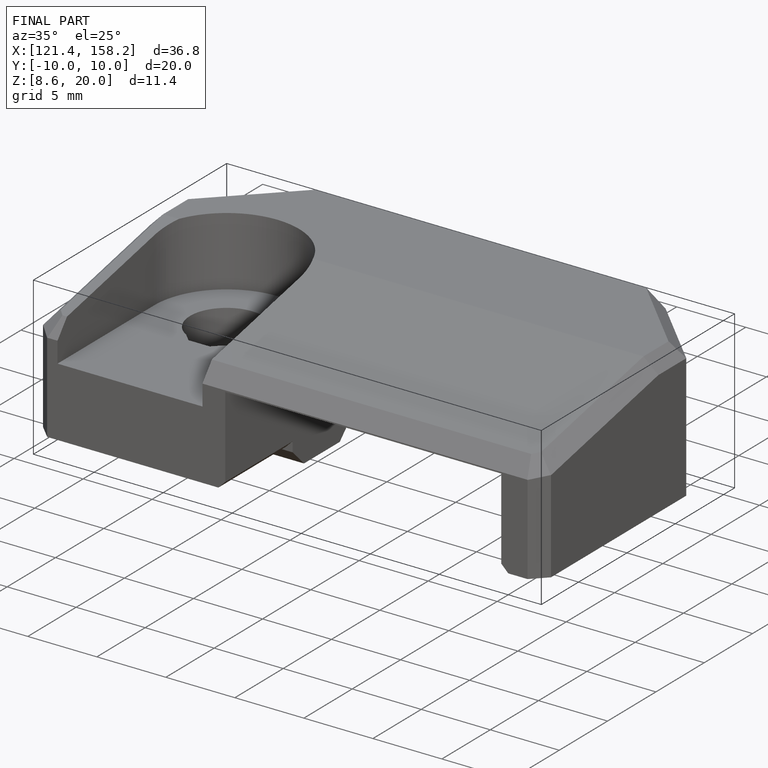
[diagram: finished part — iso view with bounding-box wireframe]
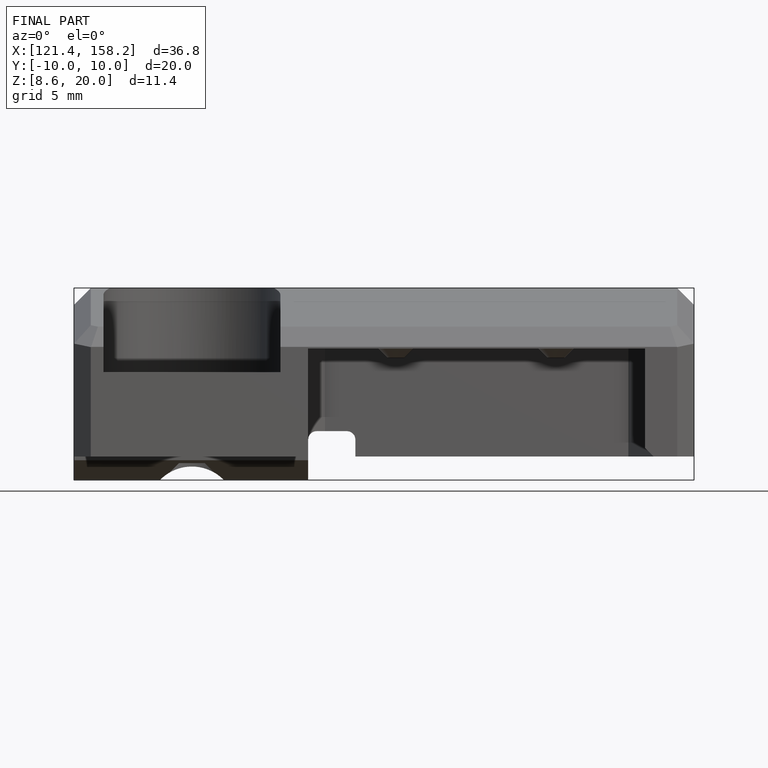
[diagram: finished part — front view with bounding-box wireframe]
